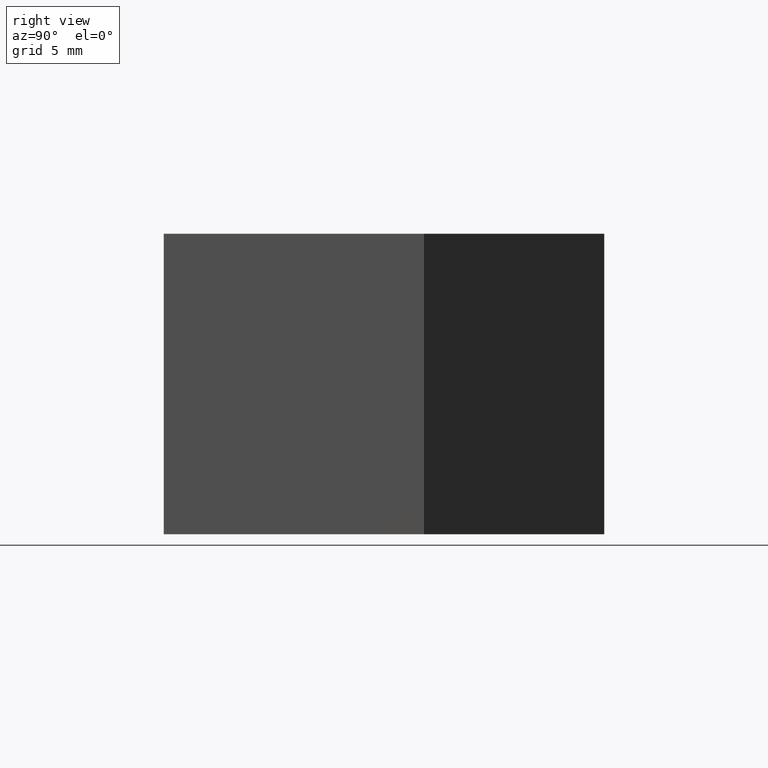
[diagram: clean part render]
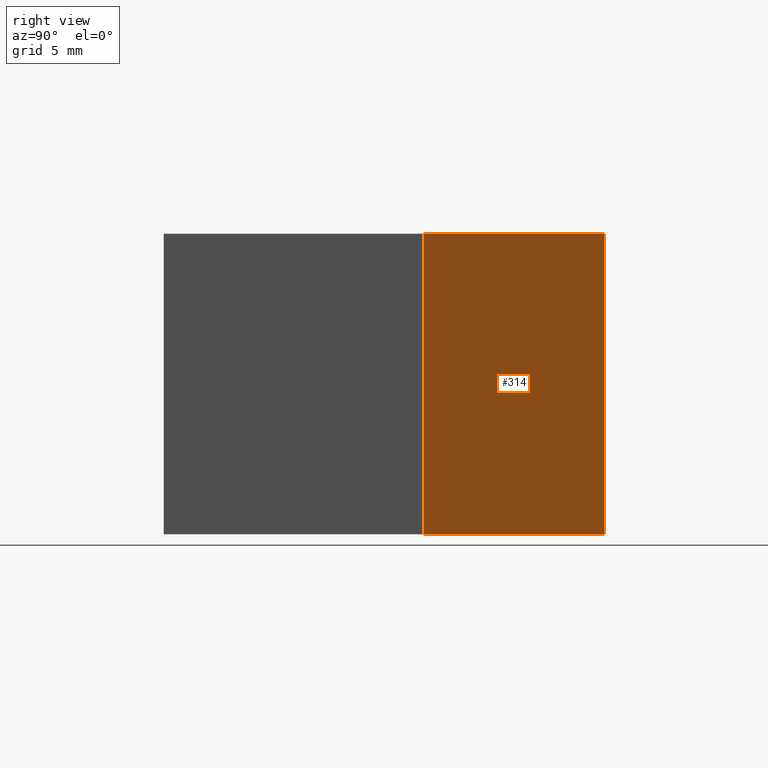
[diagram: same view with one face highlighted and labeled with its STEP entity id]
A machine part, right view. The second image highlights one B-rep face of the part: STEP entity #314.
In plain terms, the highlighted planar face has unit normal (0.8742, 0.4856, 0).
Its self-contained STEP definition (entity closure, byte-faithful):
#28=FACE_OUTER_BOUND('',#44,.T.);
#44=EDGE_LOOP('',(#260,#261,#262,#263));
#61=LINE('',#462,#103);
#84=LINE('',#508,#126);
#85=LINE('',#511,#127);
#86=LINE('',#512,#128);
#103=VECTOR('',#374,10.);
#126=VECTOR('',#419,10.);
#127=VECTOR('',#422,10.);
#128=VECTOR('',#423,10.);
#133=VERTEX_POINT('',#436);
#145=VERTEX_POINT('',#460);
#157=VERTEX_POINT('',#506);
#158=VERTEX_POINT('',#510);
#173=EDGE_CURVE('',#133,#145,#61,.T.);
#196=EDGE_CURVE('',#157,#145,#84,.T.);
#197=EDGE_CURVE('',#157,#158,#85,.T.);
#198=EDGE_CURVE('',#158,#133,#86,.T.);
#260=ORIENTED_EDGE('',*,*,#197,.T.);
#261=ORIENTED_EDGE('',*,*,#198,.T.);
#262=ORIENTED_EDGE('',*,*,#173,.T.);
#263=ORIENTED_EDGE('',*,*,#196,.F.);
#298=PLANE('',#353);
#314=ADVANCED_FACE('',(#28),#298,.T.);
#353=AXIS2_PLACEMENT_3D('',#509,#420,#421);
#374=DIRECTION('',(-0.485642931178632,0.874157276121538,0.));
#419=DIRECTION('',(0.,0.,-1.));
#420=DIRECTION('center_axis',(0.874157276121538,0.485642931178632,0.));
#421=DIRECTION('ref_axis',(0.,0.,-1.));
#422=DIRECTION('',(0.485642931178632,-0.874157276121538,0.));
#423=DIRECTION('',(0.,0.,-1.));
#436=CARTESIAN_POINT('',(12.5,13.,-7.5));
#460=CARTESIAN_POINT('',(7.5,22.,-7.5));
#462=CARTESIAN_POINT('',(7.5,22.,-7.5));
#506=CARTESIAN_POINT('',(7.5,22.,7.5));
#508=CARTESIAN_POINT('',(7.5,22.,0.));
#509=CARTESIAN_POINT('Origin',(7.5,22.,0.));
#510=CARTESIAN_POINT('',(12.5,13.,7.5));
#511=CARTESIAN_POINT('',(7.5,22.,7.5));
#512=CARTESIAN_POINT('',(12.5,13.,0.));